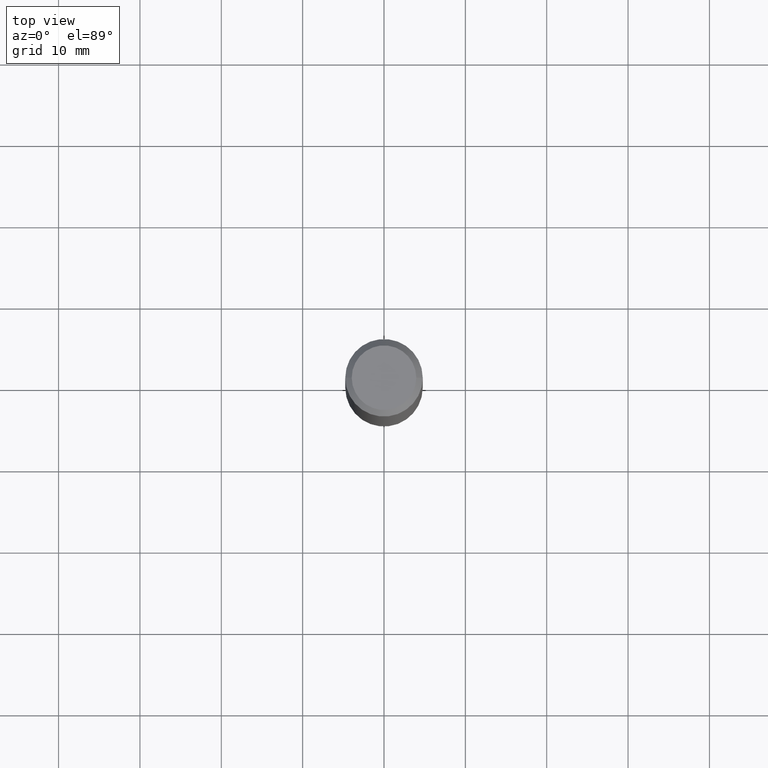
[diagram: clean part render]
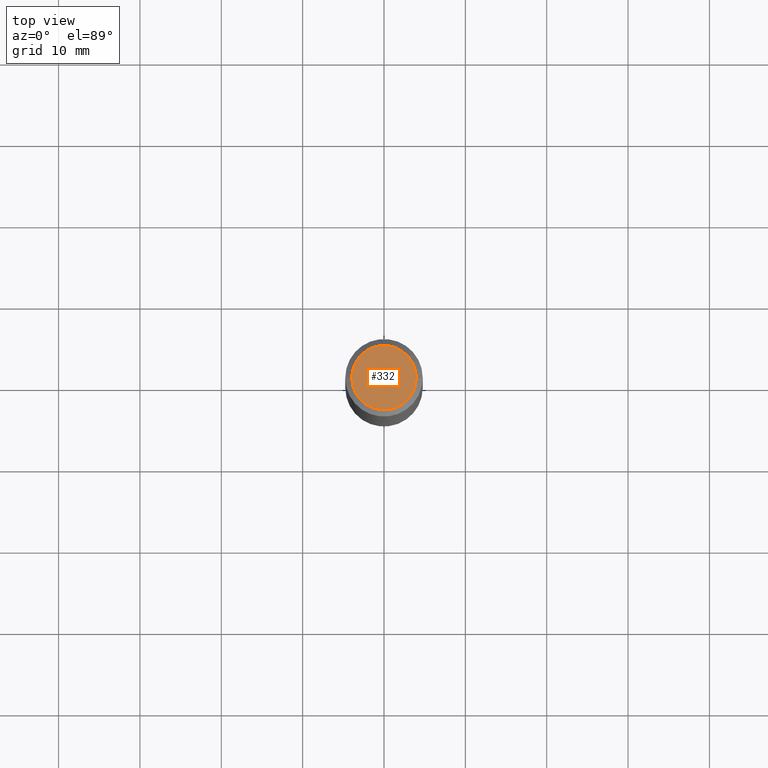
[diagram: same view with one face highlighted and labeled with its STEP entity id]
A machine part, top view. The second image highlights one B-rep face of the part: STEP entity #332.
In plain terms, the highlighted planar face has unit normal (0, -0, -1).
Its self-contained STEP definition (entity closure, byte-faithful):
#5 = VERTEX_POINT ( 'NONE', #61 ) ;
#11 = ORIENTED_EDGE ( 'NONE', *, *, #46, .T. ) ;
#12 = DIRECTION ( 'NONE',  ( 2.438088387897960049E-29, -3.491481338843145188E-15, -1.000000000000000000 ) ) ;
#44 = AXIS2_PLACEMENT_3D ( 'NONE', #101, #224, #330 ) ;
#46 = EDGE_CURVE ( 'NONE', #5, #182, #215, .T. ) ;
#61 = CARTESIAN_POINT ( 'NONE',  ( -0.1562500000000000833, 1.145642314307903329E-15, -7.821033771059395014E-30 ) ) ;
#76 = AXIS2_PLACEMENT_3D ( 'NONE', #310, #12, #214 ) ;
#81 = CARTESIAN_POINT ( 'NONE',  ( 0.1562500000000000833, -1.233702489286406538E-15, 8.128494228692102296E-30 ) ) ;
#101 = CARTESIAN_POINT ( 'NONE',  ( 0.000000000000000000, 0.000000000000000000, 0.000000000000000000 ) ) ;
#152 = DIRECTION ( 'NONE',  ( 1.000000000000000000, -6.982962677686266711E-15, 4.876176775795935232E-29 ) ) ;
#182 = VERTEX_POINT ( 'NONE', #81 ) ;
#205 = CIRCLE ( 'NONE', #44, 0.1562500000000000833 ) ;
#206 = PLANE ( 'NONE',  #76 ) ;
#214 = DIRECTION ( 'NONE',  ( -1.000000000000000000, 6.982962677686265922E-15, -4.876176775795935793E-29 ) ) ;
#215 = CIRCLE ( 'NONE', #291, 0.1562500000000000833 ) ;
#224 = DIRECTION ( 'NONE',  ( -2.445468806185136597E-29, 3.491481338843145583E-15, 1.000000000000000000 ) ) ;
#269 = EDGE_LOOP ( 'NONE', ( #11, #327 ) ) ;
#271 = EDGE_CURVE ( 'NONE', #182, #5, #205, .T. ) ;
#272 = FACE_OUTER_BOUND ( 'NONE', #269, .T. ) ;
#291 = AXIS2_PLACEMENT_3D ( 'NONE', #383, #322, #152 ) ;
#310 = CARTESIAN_POINT ( 'NONE',  ( 0.000000000000000000, 0.000000000000000000, 0.000000000000000000 ) ) ;
#322 = DIRECTION ( 'NONE',  ( -2.445468806185136597E-29, 3.491481338843145583E-15, 1.000000000000000000 ) ) ;
#327 = ORIENTED_EDGE ( 'NONE', *, *, #271, .T. ) ;
#330 = DIRECTION ( 'NONE',  ( 1.000000000000000000, -6.982962677686266711E-15, 4.876176775795935232E-29 ) ) ;
#332 = ADVANCED_FACE ( 'NONE', ( #272 ), #206, .F. ) ;
#383 = CARTESIAN_POINT ( 'NONE',  ( 0.000000000000000000, 0.000000000000000000, 0.000000000000000000 ) ) ;